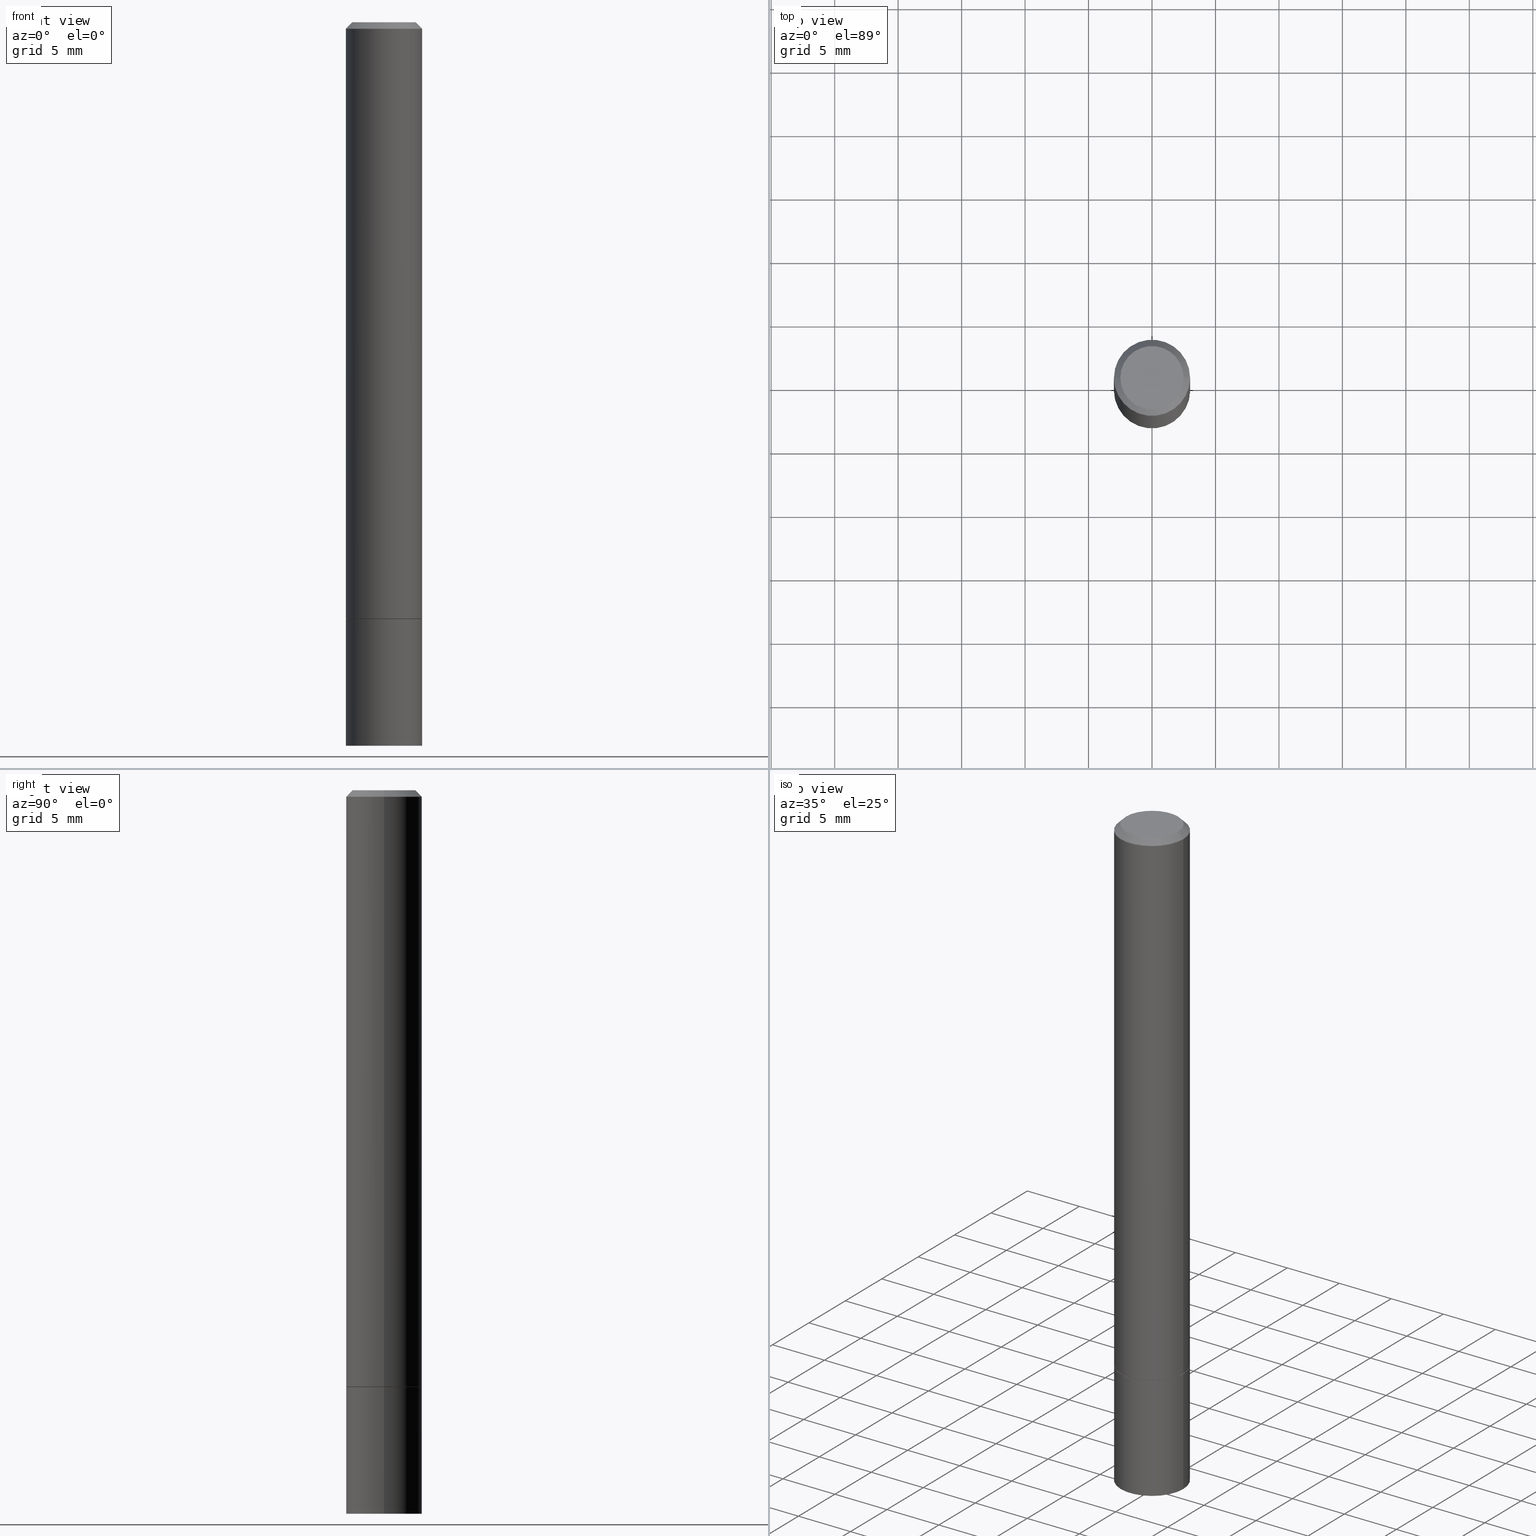
[diagram: canonical four-view strip — front | top / right | iso, engineering-drawing reading convention]
A machine part, canonical four-view strip (front | top / right | iso — engineering-drawing reading convention). The complete STEP part file that produces these views, byte-faithful:
ISO-10303-21;
HEADER;
FILE_DESCRIPTION (( 'STEP AP203' ),
    '1' );
FILE_NAME ('45287.STEP',
    '2024-02-28T09:06:32',
    ( '' ),
    ( '' ),
    'SwSTEP 2.0',
    'SolidWorks 2023',
    '' );
FILE_SCHEMA (( 'CONFIG_CONTROL_DESIGN' ));
ENDSEC;

DATA;
#1 = ADVANCED_FACE ( 'NONE', ( #284 ), #76, .T. ) ;
#2 = DIRECTION ( 'NONE',  ( 1.000000000000000000, -6.982962677686266711E-15, 4.876176775795935232E-29 ) ) ;
#3 = PERSON_AND_ORGANIZATION ( #220, #231 ) ;
#4 = EDGE_LOOP ( 'NONE', ( #292, #150, #159, #318 ) ) ;
#5 = PERSON_AND_ORGANIZATION_ROLE ( 'creator' ) ;
#6 = PRODUCT_DEFINITION_FORMATION_WITH_SPECIFIED_SOURCE ( 'ANY', '', #255, .NOT_KNOWN. ) ;
#7 = CARTESIAN_POINT ( 'NONE',  ( 0.1180999999999999966, -8.246878922347480654E-16, 5.758764772215000440E-30 ) ) ;
#8 = APPLICATION_PROTOCOL_DEFINITION ( 'international standard', 'config_control_design', 1994, #21 ) ;
#9 = VERTEX_POINT ( 'NONE', #314 ) ;
#10 = APPROVAL_STATUS ( 'not_yet_approved' ) ;
#11 = DIRECTION ( 'NONE',  ( 1.000000000000000000, -6.982962677686266711E-15, 0.000000000000000000 ) ) ;
#12 = VECTOR ( 'NONE', #137, 39.37007874015748143 ) ;
#13 = AXIS2_PLACEMENT_3D ( 'NONE', #112, #334, #73 ) ;
#14 = VERTEX_POINT ( 'NONE', #207 ) ;
#15 = CARTESIAN_POINT ( 'NONE',  ( 0.1180999999999999966, -7.285324961630104261E-15, -1.850400000000000045 ) ) ;
#16 = CARTESIAN_POINT ( 'NONE',  ( 0.1170999999999999958, -7.278341998952418247E-15, -1.850400000000000045 ) ) ;
#17 = PERSON_AND_ORGANIZATION ( #220, #231 ) ;
#18 = VERTEX_POINT ( 'NONE', #31 ) ;
#19 = LINE ( 'NONE', #309, #204 ) ;
#20 = EDGE_CURVE ( 'NONE', #122, #223, #89, .T. ) ;
#21 = APPLICATION_CONTEXT ( 'configuration controlled 3d designs of mechanical parts and assemblies' ) ;
#22 = PERSON_AND_ORGANIZATION_ROLE ( 'classification_officer' ) ;
#23 = AXIS2_PLACEMENT_3D ( 'NONE', #234, #258, #28 ) ;
#24 = CARTESIAN_POINT ( 'NONE',  ( -0.1180999999999997607, 7.548582654578835839E-16, -0.01999999999999999001 ) ) ;
#25 = CC_DESIGN_DATE_AND_TIME_ASSIGNMENT ( #265, #79, ( #361 ) ) ;
#26 = FACE_OUTER_BOUND ( 'NONE', #133, .T. ) ;
#27 = ORIENTED_EDGE ( 'NONE', *, *, #127, .T. ) ;
#28 = DIRECTION ( 'NONE',  ( 1.000000000000000000, -6.982962677686266711E-15, 4.876176775795935232E-29 ) ) ;
#29 = AXIS2_PLACEMENT_3D ( 'NONE', #250, #58, #320 ) ;
#30 = ORIENTED_EDGE ( 'NONE', *, *, #136, .T. ) ;
#31 = CARTESIAN_POINT ( 'NONE',  ( 0.1180999999999997607, -8.800544403136790625E-16, -0.01999999999999999001 ) ) ;
#32 = CALENDAR_DATE ( 2024, 28, 2 ) ;
#33 = APPLICATION_CONTEXT ( 'configuration controlled 3d designs of mechanical parts and assemblies' ) ;
#34 = ORIENTED_EDGE ( 'NONE', *, *, #136, .F. ) ;
#35 = ORIENTED_EDGE ( 'NONE', *, *, #201, .F. ) ;
#36 = DIRECTION ( 'NONE',  ( -2.445468806185136597E-29, 3.491481338843145583E-15, 1.000000000000000000 ) ) ;
#37 = EDGE_CURVE ( 'NONE', #57, #223, #105, .T. ) ;
#38 = DIRECTION ( 'NONE',  ( -2.445468806185136597E-29, 3.491481338843145583E-15, 1.000000000000000000 ) ) ;
#39 = CARTESIAN_POINT ( 'NONE',  ( 0.000000000000000000, 0.000000000000000000, 0.000000000000000000 ) ) ;
#40 = DATE_AND_TIME ( #75, #217 ) ;
#41 = ORIENTED_EDGE ( 'NONE', *, *, #315, .T. ) ;
#42 = CARTESIAN_POINT ( 'NONE',  ( 4.522650010158791791E-29, -6.457145588056512991E-15, -1.849399999999999933 ) ) ;
#43 = CONICAL_SURFACE ( 'NONE', #50, 0.1170999999999999958, 0.7853981633974141952 ) ;
#44 = VERTEX_POINT ( 'NONE', #49 ) ;
#45 = CARTESIAN_POINT ( 'NONE',  ( 5.487876547960064752E-29, -7.835233272497902340E-15, -2.244099999999999984 ) ) ;
#46 = DIRECTION ( 'NONE',  ( 2.445468806185136597E-29, -3.491481338843145583E-15, -1.000000000000000000 ) ) ;
#47 = CARTESIAN_POINT ( 'NONE',  ( 0.1180999999999999966, -8.659921164732650602E-15, -2.244099999999999984 ) ) ;
#48 = ADVANCED_FACE ( 'NONE', ( #26 ), #113, .T. ) ;
#49 = CARTESIAN_POINT ( 'NONE',  ( -0.1170999999999999958, -5.623293071472057196E-15, -1.850400000000000045 ) ) ;
#50 = AXIS2_PLACEMENT_3D ( 'NONE', #134, #65, #74 ) ;
#51 = APPLICATION_PROTOCOL_DEFINITION ( 'international standard', 'config_control_design', 1994, #33 ) ;
#52 = FACE_OUTER_BOUND ( 'NONE', #4, .T. ) ;
#53 = DIRECTION ( 'NONE',  ( -2.445468806185136877E-29, 3.491481338843145188E-15, 1.000000000000000000 ) ) ;
#54 = ADVANCED_FACE ( 'NONE', ( #81 ), #147, .T. ) ;
#55 = APPROVAL_PERSON_ORGANIZATION ( #17, #183, #306 ) ;
#56 = MANIFOLD_SOLID_BREP ( 'Body-Move/Copy2[1]', #273 ) ;
#57 = VERTEX_POINT ( 'NONE', #47 ) ;
#58 = DIRECTION ( 'NONE',  ( -2.445468806185136597E-29, 3.491481338843145583E-15, 1.000000000000000000 ) ) ;
#59 = CC_DESIGN_PERSON_AND_ORGANIZATION_ASSIGNMENT ( #3, #114, ( #255 ) ) ;
#60 = AXIS2_PLACEMENT_3D ( 'NONE', #288, #205, #2 ) ;
#61 = AXIS2_PLACEMENT_3D ( 'NONE', #270, #229, #164 ) ;
#62 = DIRECTION ( 'NONE',  ( -2.445468806185136597E-29, 3.491481338843145583E-15, 1.000000000000000000 ) ) ;
#63 = ORIENTED_EDGE ( 'NONE', *, *, #20, .T. ) ;
#64 = CC_DESIGN_PERSON_AND_ORGANIZATION_ASSIGNMENT ( #72, #22, ( #139 ) ) ;
#65 = DIRECTION ( 'NONE',  ( -2.445468806185136597E-29, 3.491481338843145583E-15, 1.000000000000000000 ) ) ;
#66 = LINE ( 'NONE', #94, #123 ) ;
#67 = DIRECTION ( 'NONE',  ( 1.000000000000000000, -6.982962677686264344E-15, 0.000000000000000000 ) ) ;
#68 = DIRECTION ( 'NONE',  ( 1.000000000000000000, -6.982962677686265133E-15, 0.000000000000000000 ) ) ;
#69 =( GEOMETRIC_REPRESENTATION_CONTEXT ( 3 ) GLOBAL_UNCERTAINTY_ASSIGNED_CONTEXT ( ( #364 ) ) GLOBAL_UNIT_ASSIGNED_CONTEXT ( ( #302, #197, #208 ) ) REPRESENTATION_CONTEXT ( 'NONE', 'WORKASPACE' ) );
#70 = AXIS2_PLACEMENT_3D ( 'NONE', #166, #331, #305 ) ;
#71 = ORIENTED_EDGE ( 'NONE', *, *, #261, .F. ) ;
#72 = PERSON_AND_ORGANIZATION ( #220, #231 ) ;
#73 = DIRECTION ( 'NONE',  ( -1.000000000000000000, 6.982962677686265922E-15, -4.876176775795935793E-29 ) ) ;
#74 = DIRECTION ( 'NONE',  ( 1.000000000000000000, -6.982962677686264344E-15, 0.000000000000000000 ) ) ;
#75 = CALENDAR_DATE ( 2024, 28, 2 ) ;
#76 = CYLINDRICAL_SURFACE ( 'NONE', #23, 0.1180999999999998856 ) ;
#77 = AXIS2_PLACEMENT_3D ( 'NONE', #254, #97, #257 ) ;
#78 = ORIENTED_EDGE ( 'NONE', *, *, #252, .T. ) ;
#79 = DATE_TIME_ROLE ( 'creation_date' ) ;
#80 = ADVANCED_FACE ( 'NONE', ( #144 ), #264, .F. ) ;
#81 = FACE_OUTER_BOUND ( 'NONE', #249, .T. ) ;
#82 = DIRECTION ( 'NONE',  ( -1.000000000000000000, 6.982962677686265922E-15, -4.876176775795935793E-29 ) ) ;
#83 = VECTOR ( 'NONE', #259, 39.37007874015748143 ) ;
#84 = CIRCLE ( 'NONE', #313, 0.1180999999999999966 ) ;
#85 = CARTESIAN_POINT ( 'NONE',  ( 0.000000000000000000, 0.000000000000000000, 0.000000000000000000 ) ) ;
#86 = ORIENTED_EDGE ( 'NONE', *, *, #160, .F. ) ;
#87 = EDGE_CURVE ( 'NONE', #304, #316, #199, .T. ) ;
#88 = DIRECTION ( 'NONE',  ( -2.445468806185136597E-29, 3.491481338843145583E-15, 1.000000000000000000 ) ) ;
#89 = CIRCLE ( 'NONE', #216, 0.1180999999999999966 ) ;
#90 = LOCAL_TIME ( 4, 6, 32.00000000000000000, #233 ) ;
#91 = ORIENTED_EDGE ( 'NONE', *, *, #351, .T. ) ;
#92 = CC_DESIGN_PERSON_AND_ORGANIZATION_ASSIGNMENT ( #152, #5, ( #361 ) ) ;
#93 = DIRECTION ( 'NONE',  ( -2.445468806185136597E-29, 3.491481338843145583E-15, 1.000000000000000000 ) ) ;
#94 = CARTESIAN_POINT ( 'NONE',  ( -0.1180999999999999966, 8.391509709326782957E-16, -5.809262341591043784E-30 ) ) ;
#95 = ADVANCED_FACE ( 'NONE', ( #323 ), #245, .F. ) ;
#96 = ORIENTED_EDGE ( 'NONE', *, *, #315, .F. ) ;
#97 = DIRECTION ( 'NONE',  ( -2.445468806185136597E-29, 3.491481338843145583E-15, 1.000000000000000000 ) ) ;
#98 = FACE_OUTER_BOUND ( 'NONE', #319, .T. ) ;
#99 = COORDINATED_UNIVERSAL_TIME_OFFSET ( 5, 0, .BEHIND. ) ;
#100 = SECURITY_CLASSIFICATION_LEVEL ( 'unclassified' ) ;
#101 = EDGE_LOOP ( 'NONE', ( #172, #253 ) ) ;
#102 = AXIS2_PLACEMENT_3D ( 'NONE', #42, #228, #68 ) ;
#103 = DATE_AND_TIME ( #363, #211 ) ;
#104 = DIRECTION ( 'NONE',  ( 1.000000000000000000, -6.982962677686265133E-15, 0.000000000000000000 ) ) ;
#105 = LINE ( 'NONE', #7, #83 ) ;
#106 = LENGTH_MEASURE_WITH_UNIT ( LENGTH_MEASURE( 0.02539999999999999897 ), #310 );
#107 = ORIENTED_EDGE ( 'NONE', *, *, #219, .F. ) ;
#108 = ORIENTED_EDGE ( 'NONE', *, *, #301, .F. ) ;
#109 = AXIS2_PLACEMENT_3D ( 'NONE', #117, #36, #325 ) ;
#110 = APPROVAL_PERSON_ORGANIZATION ( #174, #167, #180 ) ;
#111 = EDGE_CURVE ( 'NONE', #115, #14, #312, .T. ) ;
#112 = CARTESIAN_POINT ( 'NONE',  ( 8.246878922347932277E-16, 0.1180999999999935435, -1.850400000000000489 ) ) ;
#113 = CYLINDRICAL_SURFACE ( 'NONE', #60, 0.1180999999999998856 ) ;
#114 = PERSON_AND_ORGANIZATION_ROLE ( 'design_owner' ) ;
#115 = VERTEX_POINT ( 'NONE', #156 ) ;
#116 = PLANE ( 'NONE',  #333 ) ;
#117 = CARTESIAN_POINT ( 'NONE',  ( 5.487876547960064752E-29, -7.835233272497902340E-15, -2.244099999999999984 ) ) ;
#118 = ADVANCED_FACE ( 'NONE', ( #52 ), #299, .T. ) ;
#119 = VERTEX_POINT ( 'NONE', #212 ) ;
#120 = DIRECTION ( 'NONE',  ( 1.000000000000000000, -6.982962677686265133E-15, 0.000000000000000000 ) ) ;
#121 = ORIENTED_EDGE ( 'NONE', *, *, #351, .F. ) ;
#122 = VERTEX_POINT ( 'NONE', #248 ) ;
#123 = VECTOR ( 'NONE', #355, 39.37007874015748143 ) ;
#124 = CC_DESIGN_APPROVAL ( #183, ( #139 ) ) ;
#125 = FACE_OUTER_BOUND ( 'NONE', #155, .T. ) ;
#126 = CARTESIAN_POINT ( 'NONE',  ( 4.525095478964976833E-29, -6.460637069395356787E-15, -1.850400000000000045 ) ) ;
#127 = EDGE_CURVE ( 'NONE', #237, #122, #66, .T. ) ;
#128 = ORIENTED_EDGE ( 'NONE', *, *, #301, .T. ) ;
#129 = FACE_OUTER_BOUND ( 'NONE', #101, .T. ) ;
#130 = CARTESIAN_POINT ( 'NONE',  ( 0.1180999999999999966, -7.281833480291261254E-15, -1.849399999999999933 ) ) ;
#131 = PRODUCT_RELATED_PRODUCT_CATEGORY ( 'detail', '', ( #255 ) ) ;
#132 = CALENDAR_DATE ( 2024, 28, 2 ) ;
#133 = EDGE_LOOP ( 'NONE', ( #194, #268, #107, #321 ) ) ;
#134 = CARTESIAN_POINT ( 'NONE',  ( 4.525095478964976833E-29, -6.460637069395356787E-15, -1.850400000000000045 ) ) ;
#135 = DATE_AND_TIME ( #132, #274 ) ;
#136 = EDGE_CURVE ( 'NONE', #304, #44, #184, .T. ) ;
#137 = DIRECTION ( 'NONE',  ( -2.445468806185136877E-29, 3.491481338843145188E-15, 1.000000000000000000 ) ) ;
#138 = AXIS2_PLACEMENT_3D ( 'NONE', #357, #93, #266 ) ;
#139 = SECURITY_CLASSIFICATION ( '', '', #100 ) ;
#140 = DIRECTION ( 'NONE',  ( 0.7071067811865465735, -7.319954787623252890E-15, -0.7071067811865484609 ) ) ;
#141 = APPROVAL_DATE_TIME ( #103, #183 ) ;
#142 = ORIENTED_EDGE ( 'NONE', *, *, #87, .T. ) ;
#143 = EDGE_LOOP ( 'NONE', ( #30, #342, #291, #247 ) ) ;
#144 = FACE_OUTER_BOUND ( 'NONE', #348, .T. ) ;
#145 = APPROVAL_DATE_TIME ( #336, #167 ) ;
#146 = ORIENTED_EDGE ( 'NONE', *, *, #267, .T. ) ;
#147 = CONICAL_SURFACE ( 'NONE', #210, 0.1180999999999997607, 0.7853981633974469467 ) ;
#148 = APPROVAL_PERSON_ORGANIZATION ( #177, #181, #202 ) ;
#149 = DIRECTION ( 'NONE',  ( -2.445468806185136597E-29, 3.491481338843145583E-15, 1.000000000000000000 ) ) ;
#150 = ORIENTED_EDGE ( 'NONE', *, *, #154, .T. ) ;
#151 = DIRECTION ( 'NONE',  ( -1.000000000000000000, 6.982962677686266711E-15, 0.000000000000000000 ) ) ;
#152 = PERSON_AND_ORGANIZATION ( #220, #231 ) ;
#153 = CARTESIAN_POINT ( 'NONE',  ( -0.1170999999999999958, -5.628591525820279598E-15, -1.850400000000000045 ) ) ;
#154 = EDGE_CURVE ( 'NONE', #237, #57, #326, .T. ) ;
#155 = EDGE_LOOP ( 'NONE', ( #146, #27, #189, #298 ) ) ;
#156 = CARTESIAN_POINT ( 'NONE',  ( -0.09809999999999981235, 7.199434520694526251E-16, 4.268512490095498617E-18 ) ) ;
#157 = LOCAL_TIME ( 4, 6, 32.00000000000000000, #294 ) ;
#158 = CYLINDRICAL_SURFACE ( 'NONE', #61, 0.1180999999999999966 ) ;
#159 = ORIENTED_EDGE ( 'NONE', *, *, #37, .T. ) ;
#160 = EDGE_CURVE ( 'NONE', #119, #9, #222, .T. ) ;
#161 = DIRECTION ( 'NONE',  ( -2.445468806185136597E-29, 3.491481338843145583E-15, 1.000000000000000000 ) ) ;
#162 = DIRECTION ( 'NONE',  ( 1.000000000000000000, -6.982962677686264344E-15, 0.000000000000000000 ) ) ;
#163 = APPROVAL_DATE_TIME ( #40, #181 ) ;
#164 = DIRECTION ( 'NONE',  ( 1.000000000000000000, -6.982962677686266711E-15, 4.876176775795936353E-29 ) ) ;
#165 = AXIS2_PLACEMENT_3D ( 'NONE', #214, #188, #162 ) ;
#166 = CARTESIAN_POINT ( 'NONE',  ( -1.043851414335219820E-46, 1.490343170380447200E-32, 4.268512490100411279E-18 ) ) ;
#167 = APPROVAL ( #289, 'UNSPECIFIED' ) ;
#168 = PERSON_AND_ORGANIZATION ( #220, #231 ) ;
#169 = PLANE ( 'NONE',  #244 ) ;
#170 = VECTOR ( 'NONE', #53, 39.37007874015748143 ) ;
#171 = EDGE_CURVE ( 'NONE', #223, #122, #345, .T. ) ;
#172 = ORIENTED_EDGE ( 'NONE', *, *, #267, .F. ) ;
#173 = CARTESIAN_POINT ( 'NONE',  ( 0.1170999999999999958, -7.278341998952418247E-15, -1.850400000000000045 ) ) ;
#174 = PERSON_AND_ORGANIZATION ( #220, #231 ) ;
#175 = EDGE_LOOP ( 'NONE', ( #86, #343, #198, #213 ) ) ;
#176 = PRODUCT_DEFINITION_SHAPE ( 'NONE', 'NONE',  #361 ) ;
#177 = PERSON_AND_ORGANIZATION ( #220, #231 ) ;
#178 = CIRCLE ( 'NONE', #102, 0.1180999999999999966 ) ;
#179 = DIRECTION ( 'NONE',  ( 2.445468806185136597E-29, -3.491481338843145583E-15, -1.000000000000000000 ) ) ;
#180 = APPROVAL_ROLE ( '' ) ;
#181 = APPROVAL ( #10, 'UNSPECIFIED' ) ;
#182 = DIRECTION ( 'NONE',  ( -2.445468806185136597E-29, 3.491481338843145583E-15, 1.000000000000000000 ) ) ;
#183 = APPROVAL ( #256, 'UNSPECIFIED' ) ;
#184 = CIRCLE ( 'NONE', #138, 0.1170999999999999958 ) ;
#185 = CONICAL_SURFACE ( 'NONE', #307, 0.1180999999999997607, 0.7853981633974469467 ) ;
#186 = ADVANCED_FACE ( 'NONE', ( #276 ), #221, .T. ) ;
#187 = CARTESIAN_POINT ( 'NONE',  ( -0.1180999999999999966, -6.308784200013950972E-15, -2.244099999999999984 ) ) ;
#188 = DIRECTION ( 'NONE',  ( -2.445468806185136597E-29, 3.491481338843145583E-15, 1.000000000000000000 ) ) ;
#189 = ORIENTED_EDGE ( 'NONE', *, *, #171, .F. ) ;
#190 = CARTESIAN_POINT ( 'NONE',  ( -0.1180999999999998856, 8.391509709326775068E-16, -5.809262341591038179E-30 ) ) ;
#191 = DIRECTION ( 'NONE',  ( 1.000000000000000000, -6.982962677686265922E-15, 4.876176775795935793E-29 ) ) ;
#192 = MANIFOLD_SOLID_BREP ( 'Body-Move/Copy2[2]', #239 ) ;
#193 = PERSON_AND_ORGANIZATION ( #220, #231 ) ;
#194 = ORIENTED_EDGE ( 'NONE', *, *, #347, .T. ) ;
#195 = AXIS2_PLACEMENT_3D ( 'NONE', #218, #269, #349 ) ;
#196 = AXIS2_PLACEMENT_3D ( 'NONE', #366, #308, #67 ) ;
#197 =( NAMED_UNIT ( * ) PLANE_ANGLE_UNIT ( ) SI_UNIT ( $, .RADIAN. ) );
#198 = ORIENTED_EDGE ( 'NONE', *, *, #285, .T. ) ;
#199 = LINE ( 'NONE', #173, #338 ) ;
#200 = COORDINATED_UNIVERSAL_TIME_OFFSET ( 5, 0, .BEHIND. ) ;
#201 = EDGE_CURVE ( 'NONE', #44, #119, #300, .T. ) ;
#202 = APPROVAL_ROLE ( '' ) ;
#203 = AXIS2_PLACEMENT_3D ( 'NONE', #39, #88, #354 ) ;
#204 = VECTOR ( 'NONE', #140, 39.37007874015748143 ) ;
#205 = DIRECTION ( 'NONE',  ( -2.445468806185136597E-29, 3.491481338843145583E-15, 1.000000000000000000 ) ) ;
#206 = ORIENTED_EDGE ( 'NONE', *, *, #111, .T. ) ;
#207 = CARTESIAN_POINT ( 'NONE',  ( 0.09809999999999981235, -7.765346469475324764E-16, 4.268512490105521927E-18 ) ) ;
#208 =( NAMED_UNIT ( * ) SI_UNIT ( $, .STERADIAN. ) SOLID_ANGLE_UNIT ( ) );
#209 = EDGE_CURVE ( 'NONE', #9, #18, #242, .T. ) ;
#210 = AXIS2_PLACEMENT_3D ( 'NONE', #230, #179, #151 ) ;
#211 = LOCAL_TIME ( 4, 6, 32.00000000000000000, #99 ) ;
#212 = CARTESIAN_POINT ( 'NONE',  ( -0.1181000000000000105, -2.424336636484006398E-15, -1.849399999999999933 ) ) ;
#213 = ORIENTED_EDGE ( 'NONE', *, *, #209, .F. ) ;
#214 = CARTESIAN_POINT ( 'NONE',  ( 4.525095478964976833E-29, -6.460637069395356787E-15, -1.850400000000000045 ) ) ;
#215 = CC_DESIGN_PERSON_AND_ORGANIZATION_ASSIGNMENT ( #168, #282, ( #6 ) ) ;
#216 = AXIS2_PLACEMENT_3D ( 'NONE', #365, #149, #262 ) ;
#217 = LOCAL_TIME ( 4, 6, 32.00000000000000000, #330 ) ;
#218 = CARTESIAN_POINT ( 'NONE',  ( 6.850286386810214690E-16, 0.09809999999999981235, -3.403800630954617044E-16 ) ) ;
#219 = EDGE_CURVE ( 'NONE', #18, #9, #297, .T. ) ;
#220 = PERSON ( 'UNSPECIFIED', 'UNSPECIFIED', 'UNSPECIFIED', ('UNSPECIFIED'), ('UNSPECIFIED'), ('UNSPECIFIED') ) ;
#221 = CONICAL_SURFACE ( 'NONE', #165, 0.1170999999999999958, 0.7853981633974141952 ) ;
#222 = LINE ( 'NONE', #190, #170 ) ;
#223 = VERTEX_POINT ( 'NONE', #15 ) ;
#224 = LINE ( 'NONE', #24, #339 ) ;
#225 = AXIS2_PLACEMENT_3D ( 'NONE', #278, #182, #295 ) ;
#226 = SHAPE_DEFINITION_REPRESENTATION ( #176, #232 ) ;
#227 = PERSON_AND_ORGANIZATION_ROLE ( 'creator' ) ;
#228 = DIRECTION ( 'NONE',  ( -2.445468806185136597E-29, 3.491481338843145583E-15, 1.000000000000000000 ) ) ;
#229 = DIRECTION ( 'NONE',  ( -2.445468806185136597E-29, 3.491481338843145583E-15, 1.000000000000000000 ) ) ;
#230 = CARTESIAN_POINT ( 'NONE',  ( 4.890937612370270531E-31, -6.982962677686289144E-17, -0.01999999999999999001 ) ) ;
#231 = ORGANIZATION ( 'UNSPECIFIED', 'UNSPECIFIED', '' ) ;
#232 = ADVANCED_BREP_SHAPE_REPRESENTATION ( '45287', ( #56, #192, #293 ), #69 ) ;
#233 = COORDINATED_UNIVERSAL_TIME_OFFSET ( 5, 0, .BEHIND. ) ;
#234 = CARTESIAN_POINT ( 'NONE',  ( 0.000000000000000000, 0.000000000000000000, 0.000000000000000000 ) ) ;
#235 = DIRECTION ( 'NONE',  ( 0.000000000000000000, 0.000000000000000000, 1.000000000000000000 ) ) ;
#236 = ADVANCED_FACE ( 'NONE', ( #129 ), #116, .T. ) ;
#237 = VERTEX_POINT ( 'NONE', #187 ) ;
#238 = CARTESIAN_POINT ( 'NONE',  ( 8.246878922348027926E-16, 0.1180999999999921557, -2.244100000000000428 ) ) ;
#239 = CLOSED_SHELL ( 'NONE', ( #322, #48, #54, #290, #1, #186, #275, #95 ) ) ;
#240 = AXIS2_PLACEMENT_3D ( 'NONE', #328, #38, #11 ) ;
#241 = DIRECTION ( 'NONE',  ( -0.7071067811865232589, 7.493145998870265808E-15, 0.7071067811865715536 ) ) ;
#242 = CIRCLE ( 'NONE', #240, 0.1180999999999997607 ) ;
#243 = CIRCLE ( 'NONE', #77, 0.1180999999999999966 ) ;
#244 = AXIS2_PLACEMENT_3D ( 'NONE', #360, #329, #191 ) ;
#245 = PLANE ( 'NONE',  #195 ) ;
#246 = ADVANCED_FACE ( 'NONE', ( #125 ), #158, .T. ) ;
#247 = ORIENTED_EDGE ( 'NONE', *, *, #87, .F. ) ;
#248 = CARTESIAN_POINT ( 'NONE',  ( -0.1180999999999999966, -6.308784200013950972E-15, -1.850400000000000045 ) ) ;
#249 = EDGE_LOOP ( 'NONE', ( #96, #91, #272, #108 ) ) ;
#250 = CARTESIAN_POINT ( 'NONE',  ( -1.043851414335219820E-46, 1.490343170380447200E-32, 4.268512490100411279E-18 ) ) ;
#251 = VECTOR ( 'NONE', #241, 39.37007874015748854 ) ;
#252 = EDGE_CURVE ( 'NONE', #44, #304, #260, .T. ) ;
#253 = ORIENTED_EDGE ( 'NONE', *, *, #154, .F. ) ;
#254 = CARTESIAN_POINT ( 'NONE',  ( 4.522650010158791791E-29, -6.457145588056512991E-15, -1.849399999999999933 ) ) ;
#255 = PRODUCT ( '45287', '45287', '', ( #317 ) ) ;
#256 = APPROVAL_STATUS ( 'not_yet_approved' ) ;
#257 = DIRECTION ( 'NONE',  ( 1.000000000000000000, -6.982962677686265133E-15, 0.000000000000000000 ) ) ;
#258 = DIRECTION ( 'NONE',  ( -2.445468806185136597E-29, 3.491481338843145583E-15, 1.000000000000000000 ) ) ;
#259 = DIRECTION ( 'NONE',  ( -2.445468806185136877E-29, 3.491481338843145188E-15, 1.000000000000000000 ) ) ;
#260 = CIRCLE ( 'NONE', #196, 0.1170999999999999958 ) ;
#261 = EDGE_CURVE ( 'NONE', #119, #316, #243, .T. ) ;
#262 = DIRECTION ( 'NONE',  ( 1.000000000000000000, -6.982962677686265133E-15, 0.000000000000000000 ) ) ;
#263 = DIRECTION ( 'NONE',  ( 1.000000000000000000, 0.000000000000000000, 0.000000000000000000 ) ) ;
#264 = PLANE ( 'NONE',  #13 ) ;
#265 = DATE_AND_TIME ( #340, #90 ) ;
#266 = DIRECTION ( 'NONE',  ( 1.000000000000000000, -6.982962677686264344E-15, 0.000000000000000000 ) ) ;
#267 = EDGE_CURVE ( 'NONE', #57, #237, #84, .T. ) ;
#268 = ORIENTED_EDGE ( 'NONE', *, *, #160, .T. ) ;
#269 = DIRECTION ( 'NONE',  ( 2.438088387897960049E-29, -3.491481338843145188E-15, -1.000000000000000000 ) ) ;
#270 = CARTESIAN_POINT ( 'NONE',  ( 0.000000000000000000, 0.000000000000000000, 0.000000000000000000 ) ) ;
#271 = ORIENTED_EDGE ( 'NONE', *, *, #209, .T. ) ;
#272 = ORIENTED_EDGE ( 'NONE', *, *, #219, .T. ) ;
#273 = CLOSED_SHELL ( 'NONE', ( #246, #236, #80, #118 ) ) ;
#274 = LOCAL_TIME ( 4, 6, 32.00000000000000000, #200 ) ;
#275 = ADVANCED_FACE ( 'NONE', ( #335 ), #169, .F. ) ;
#276 = FACE_OUTER_BOUND ( 'NONE', #296, .T. ) ;
#277 = DIRECTION ( 'NONE',  ( -1.000000000000000000, 6.982962677686266711E-15, 0.000000000000000000 ) ) ;
#278 = CARTESIAN_POINT ( 'NONE',  ( 4.890937612370270531E-31, -6.982962677686289144E-17, -0.01999999999999999001 ) ) ;
#279 = DATE_TIME_ROLE ( 'classification_date' ) ;
#280 = DIRECTION ( 'NONE',  ( -0.7071067811865465735, 2.468850131082246805E-15, -0.7071067811865484609 ) ) ;
#281 = LINE ( 'NONE', #362, #12 ) ;
#282 = PERSON_AND_ORGANIZATION_ROLE ( 'design_supplier' ) ;
#283 = FACE_OUTER_BOUND ( 'NONE', #143, .T. ) ;
#284 = FACE_OUTER_BOUND ( 'NONE', #175, .T. ) ;
#285 = EDGE_CURVE ( 'NONE', #316, #18, #281, .T. ) ;
#286 = CARTESIAN_POINT ( 'NONE',  ( 4.890937612370270531E-31, -6.982962677686289144E-17, -0.01999999999999999001 ) ) ;
#287 = ORIENTED_EDGE ( 'NONE', *, *, #111, .F. ) ;
#288 = CARTESIAN_POINT ( 'NONE',  ( 0.000000000000000000, 0.000000000000000000, 0.000000000000000000 ) ) ;
#289 = APPROVAL_STATUS ( 'not_yet_approved' ) ;
#290 = ADVANCED_FACE ( 'NONE', ( #98 ), #185, .T. ) ;
#291 = ORIENTED_EDGE ( 'NONE', *, *, #347, .F. ) ;
#292 = ORIENTED_EDGE ( 'NONE', *, *, #127, .F. ) ;
#293 = AXIS2_PLACEMENT_3D ( 'NONE', #85, #235, #263 ) ;
#294 = COORDINATED_UNIVERSAL_TIME_OFFSET ( 5, 0, .BEHIND. ) ;
#295 = DIRECTION ( 'NONE',  ( 1.000000000000000000, -6.982962677686266711E-15, 0.000000000000000000 ) ) ;
#296 = EDGE_LOOP ( 'NONE', ( #35, #78, #142, #71 ) ) ;
#297 = CIRCLE ( 'NONE', #225, 0.1180999999999997607 ) ;
#298 = ORIENTED_EDGE ( 'NONE', *, *, #37, .F. ) ;
#299 = CYLINDRICAL_SURFACE ( 'NONE', #203, 0.1180999999999999966 ) ;
#300 = LINE ( 'NONE', #153, #251 ) ;
#301 = EDGE_CURVE ( 'NONE', #115, #9, #224, .T. ) ;
#302 =( CONVERSION_BASED_UNIT ( 'INCH', #106 ) LENGTH_UNIT ( ) NAMED_UNIT ( #341 ) );
#303 = DIRECTION ( 'NONE',  ( 0.7071067811865232589, -2.468850131082003836E-15, 0.7071067811865715536 ) ) ;
#304 = VERTEX_POINT ( 'NONE', #16 ) ;
#305 = DIRECTION ( 'NONE',  ( 1.000000000000000000, -6.982962677686267499E-15, 4.876195163481341571E-29 ) ) ;
#306 = APPROVAL_ROLE ( '' ) ;
#307 = AXIS2_PLACEMENT_3D ( 'NONE', #286, #46, #277 ) ;
#308 = DIRECTION ( 'NONE',  ( -2.445468806185136597E-29, 3.491481338843145583E-15, 1.000000000000000000 ) ) ;
#309 = CARTESIAN_POINT ( 'NONE',  ( 0.1180999999999997607, -8.800544403136790625E-16, -0.01999999999999999001 ) ) ;
#310 =( LENGTH_UNIT ( ) NAMED_UNIT ( * ) SI_UNIT ( $, .METRE. ) );
#311 = DESIGN_CONTEXT ( 'detailed design', #33, 'design' ) ;
#312 = CIRCLE ( 'NONE', #29, 0.09809999999999981235 ) ;
#313 = AXIS2_PLACEMENT_3D ( 'NONE', #45, #161, #104 ) ;
#314 = CARTESIAN_POINT ( 'NONE',  ( -0.1180999999999997607, 7.548582654578835839E-16, -0.01999999999999999001 ) ) ;
#315 = EDGE_CURVE ( 'NONE', #14, #115, #327, .T. ) ;
#316 = VERTEX_POINT ( 'NONE', #130 ) ;
#317 = MECHANICAL_CONTEXT ( 'NONE', #21, 'mechanical' ) ;
#318 = ORIENTED_EDGE ( 'NONE', *, *, #20, .F. ) ;
#319 = EDGE_LOOP ( 'NONE', ( #121, #287, #128, #271 ) ) ;
#320 = DIRECTION ( 'NONE',  ( 1.000000000000000000, -6.982962677686267499E-15, 4.876195163481341571E-29 ) ) ;
#321 = ORIENTED_EDGE ( 'NONE', *, *, #285, .F. ) ;
#322 = ADVANCED_FACE ( 'NONE', ( #283 ), #43, .T. ) ;
#323 = FACE_OUTER_BOUND ( 'NONE', #359, .T. ) ;
#324 = ORIENTED_EDGE ( 'NONE', *, *, #252, .F. ) ;
#325 = DIRECTION ( 'NONE',  ( 1.000000000000000000, -6.982962677686265133E-15, 0.000000000000000000 ) ) ;
#326 = CIRCLE ( 'NONE', #109, 0.1180999999999999966 ) ;
#327 = CIRCLE ( 'NONE', #70, 0.09809999999999981235 ) ;
#328 = CARTESIAN_POINT ( 'NONE',  ( 4.890937612370270531E-31, -6.982962677686289144E-17, -0.01999999999999999001 ) ) ;
#329 = DIRECTION ( 'NONE',  ( -2.438088387897960049E-29, 3.491481338843145188E-15, 1.000000000000000000 ) ) ;
#330 = COORDINATED_UNIVERSAL_TIME_OFFSET ( 5, 0, .BEHIND. ) ;
#331 = DIRECTION ( 'NONE',  ( -2.445468806185136597E-29, 3.491481338843145583E-15, 1.000000000000000000 ) ) ;
#332 = AXIS2_PLACEMENT_3D ( 'NONE', #126, #62, #120 ) ;
#333 = AXIS2_PLACEMENT_3D ( 'NONE', #238, #344, #82 ) ;
#334 = DIRECTION ( 'NONE',  ( 2.438088387897960049E-29, -3.491481338843145188E-15, -1.000000000000000000 ) ) ;
#335 = FACE_OUTER_BOUND ( 'NONE', #353, .T. ) ;
#336 = DATE_AND_TIME ( #32, #157 ) ;
#337 = CC_DESIGN_PERSON_AND_ORGANIZATION_ASSIGNMENT ( #193, #227, ( #6 ) ) ;
#338 = VECTOR ( 'NONE', #303, 39.37007874015748854 ) ;
#339 = VECTOR ( 'NONE', #280, 39.37007874015748143 ) ;
#340 = CALENDAR_DATE ( 2024, 28, 2 ) ;
#341 = DIMENSIONAL_EXPONENTS ( 1.000000000000000000, 0.000000000000000000, 0.000000000000000000, 0.000000000000000000, 0.000000000000000000, 0.000000000000000000, 0.000000000000000000 ) ;
#342 = ORIENTED_EDGE ( 'NONE', *, *, #201, .T. ) ;
#343 = ORIENTED_EDGE ( 'NONE', *, *, #261, .T. ) ;
#344 = DIRECTION ( 'NONE',  ( 2.438088387897960049E-29, -3.491481338843145188E-15, -1.000000000000000000 ) ) ;
#345 = CIRCLE ( 'NONE', #332, 0.1180999999999999966 ) ;
#346 = CC_DESIGN_SECURITY_CLASSIFICATION ( #139, ( #6 ) ) ;
#347 = EDGE_CURVE ( 'NONE', #316, #119, #178, .T. ) ;
#348 = EDGE_LOOP ( 'NONE', ( #356, #63 ) ) ;
#349 = DIRECTION ( 'NONE',  ( -1.000000000000000000, 6.982962677686265922E-15, -4.876176775795935793E-29 ) ) ;
#350 = CC_DESIGN_DATE_AND_TIME_ASSIGNMENT ( #135, #279, ( #139 ) ) ;
#351 = EDGE_CURVE ( 'NONE', #14, #18, #19, .T. ) ;
#352 = CC_DESIGN_APPROVAL ( #181, ( #6 ) ) ;
#353 = EDGE_LOOP ( 'NONE', ( #34, #324 ) ) ;
#354 = DIRECTION ( 'NONE',  ( 1.000000000000000000, -6.982962677686266711E-15, 4.876176775795936353E-29 ) ) ;
#355 = DIRECTION ( 'NONE',  ( -2.445468806185136877E-29, 3.491481338843145188E-15, 1.000000000000000000 ) ) ;
#356 = ORIENTED_EDGE ( 'NONE', *, *, #171, .T. ) ;
#357 = CARTESIAN_POINT ( 'NONE',  ( 4.525095478964976833E-29, -6.460637069395356787E-15, -1.850400000000000045 ) ) ;
#358 = CC_DESIGN_APPROVAL ( #167, ( #361 ) ) ;
#359 = EDGE_LOOP ( 'NONE', ( #206, #41 ) ) ;
#360 = CARTESIAN_POINT ( 'NONE',  ( 4.525095478964976833E-29, -6.460637069395356787E-15, -1.850400000000000045 ) ) ;
#361 = PRODUCT_DEFINITION ( 'UNKNOWN', '', #6, #311 ) ;
#362 = CARTESIAN_POINT ( 'NONE',  ( 0.1180999999999998856, -8.246878922347472765E-16, 5.758764772214994135E-30 ) ) ;
#363 = CALENDAR_DATE ( 2024, 28, 2 ) ;
#364 = UNCERTAINTY_MEASURE_WITH_UNIT (LENGTH_MEASURE( 1.000000000000000082E-05 ), #302, 'distance_accuracy_value', 'NONE');
#365 = CARTESIAN_POINT ( 'NONE',  ( 4.525095478964976833E-29, -6.460637069395356787E-15, -1.850400000000000045 ) ) ;
#366 = CARTESIAN_POINT ( 'NONE',  ( 4.525095478964976833E-29, -6.460637069395356787E-15, -1.850400000000000045 ) ) ;
ENDSEC;
END-ISO-10303-21;
